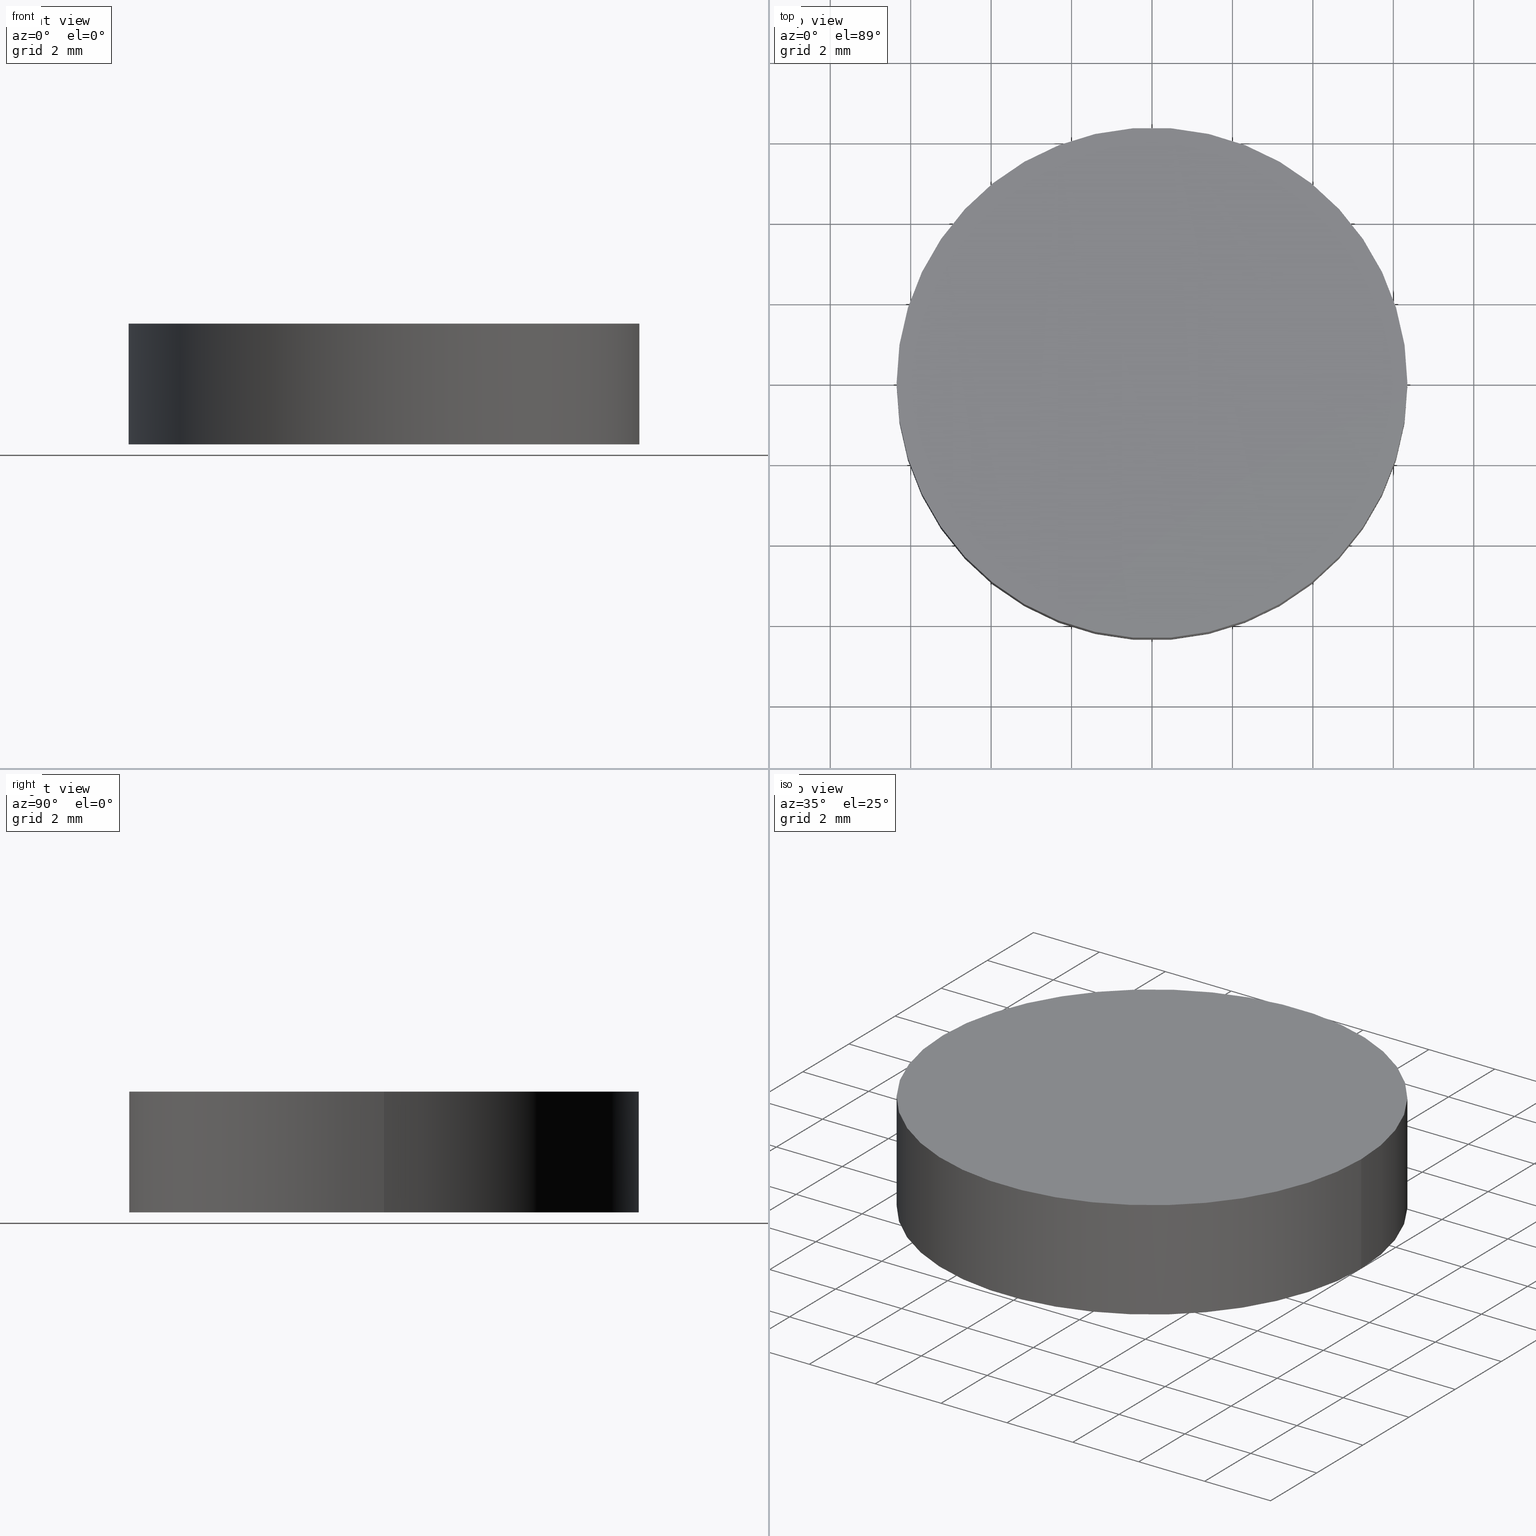
[diagram: canonical four-view strip — front | top / right | iso, engineering-drawing reading convention]
A machine part, canonical four-view strip (front | top / right | iso — engineering-drawing reading convention). The complete STEP part file that produces these views, byte-faithful:
ISO-10303-21;
HEADER;
FILE_DESCRIPTION (( 'STEP AP214' ),
    '1' );
FILE_NAME ('190133.STEP',
    '2019-07-17T08:20:52',
    ( 'user' ),
    ( '΢���й�' ),
    'SwSTEP 2.0',
    'SolidWorks 2016',
    '' );
FILE_SCHEMA (( 'AUTOMOTIVE_DESIGN' ));
ENDSEC;

DATA;
#1 = ORIENTED_EDGE ( 'NONE', *, *, #22, .T. ) ;
#2 = EDGE_CURVE ( 'NONE', #97, #31, #70, .T. ) ;
#3 = FACE_OUTER_BOUND ( 'NONE', #135, .T. ) ;
#4 = SURFACE_STYLE_FILL_AREA ( #109 ) ;
#5 = VECTOR ( 'NONE', #101, 1000.000000000000000 ) ;
#6 = FACE_OUTER_BOUND ( 'NONE', #8, .T. ) ;
#7 =( LENGTH_UNIT ( ) NAMED_UNIT ( * ) SI_UNIT ( .MILLI., .METRE. ) );
#8 = EDGE_LOOP ( 'NONE', ( #41, #100 ) ) ;
#9 = STYLED_ITEM ( 'NONE', ( #50 ), #81 ) ;
#10 = FILL_AREA_STYLE_COLOUR ( '', #56 ) ;
#11 = PRESENTATION_STYLE_ASSIGNMENT (( #104 ) ) ;
#12 =( NAMED_UNIT ( * ) SI_UNIT ( $, .STERADIAN. ) SOLID_ANGLE_UNIT ( ) );
#13 = PRESENTATION_LAYER_ASSIGNMENT (  '', '', ( #9 ) ) ;
#14 = MANIFOLD_SOLID_BREP ( '͹̨-����1', #49 ) ;
#15 = SURFACE_SIDE_STYLE ('',( #86 ) ) ;
#16 = AXIS2_PLACEMENT_3D ( 'NONE', #116, #124, #36 ) ;
#17 = MECHANICAL_DESIGN_GEOMETRIC_PRESENTATION_REPRESENTATION (  '', ( #9 ), #25 ) ;
#18 = CIRCLE ( 'NONE', #126, 6.349999999999999600 ) ;
#19 = PLANE ( 'NONE',  #28 ) ;
#20 =( LENGTH_UNIT ( ) NAMED_UNIT ( * ) SI_UNIT ( .MILLI., .METRE. ) );
#21 = DIRECTION ( 'NONE',  ( 1.000000000000000000, 0.0000000000000000000, 0.0000000000000000000 ) ) ;
#22 = EDGE_CURVE ( 'NONE', #117, #88, #98, .T. ) ;
#23 = APPLICATION_CONTEXT ( 'automotive_design' ) ;
#24 = APPLICATION_CONTEXT ( 'automotive_design' ) ;
#25 =( GEOMETRIC_REPRESENTATION_CONTEXT ( 3 ) GLOBAL_UNCERTAINTY_ASSIGNED_CONTEXT ( ( #95 ) ) GLOBAL_UNIT_ASSIGNED_CONTEXT ( ( #7, #34, #139 ) ) REPRESENTATION_CONTEXT ( 'NONE', 'WORKASPACE' ) );
#26 = CYLINDRICAL_SURFACE ( 'NONE', #16, 6.349999999999999600 ) ;
#27 = EDGE_LOOP ( 'NONE', ( #123, #58, #127, #1 ) ) ;
#28 = AXIS2_PLACEMENT_3D ( 'NONE', #83, #136, #57 ) ;
#29 = PRODUCT_DEFINITION_CONTEXT ( 'detailed design', #23, 'design' ) ;
#30 = CARTESIAN_POINT ( 'NONE',  ( 6.349999999999999600, 7.776507174585692200E-016, 3.000000000000000000 ) ) ;
#31 = VERTEX_POINT ( 'NONE', #134 ) ;
#32 = DIRECTION ( 'NONE',  ( -0.0000000000000000000, -0.0000000000000000000, -1.000000000000000000 ) ) ;
#33 = CARTESIAN_POINT ( 'NONE',  ( -6.349999999999999600, 0.0000000000000000000, 0.0000000000000000000 ) ) ;
#34 =( NAMED_UNIT ( * ) PLANE_ANGLE_UNIT ( ) SI_UNIT ( $, .RADIAN. ) );
#35 = APPLICATION_PROTOCOL_DEFINITION ( 'draft international standard', 'automotive_design', 1998, #24 ) ;
#36 = DIRECTION ( 'NONE',  ( -1.000000000000000000, 0.0000000000000000000, 0.0000000000000000000 ) ) ;
#37 = PRESENTATION_LAYER_ASSIGNMENT (  '', '', ( #111 ) ) ;
#38 = ORIENTED_EDGE ( 'NONE', *, *, #120, .T. ) ;
#39 = ADVANCED_FACE ( 'NONE', ( #112 ), #26, .T. ) ;
#40 = UNCERTAINTY_MEASURE_WITH_UNIT (LENGTH_MEASURE( 1.000000000000000100E-005 ), #20, 'distance_accuracy_value', 'NONE');
#41 = ORIENTED_EDGE ( 'NONE', *, *, #99, .T. ) ;
#42 = CARTESIAN_POINT ( 'NONE',  ( -6.349999999999999600, 0.0000000000000000000, 3.000000000000000000 ) ) ;
#43 = DIRECTION ( 'NONE',  ( 1.000000000000000000, 0.0000000000000000000, 0.0000000000000000000 ) ) ;
#44 = CARTESIAN_POINT ( 'NONE',  ( 0.0000000000000000000, 0.0000000000000000000, 3.000000000000000000 ) ) ;
#45 = AXIS2_PLACEMENT_3D ( 'NONE', #44, #72, #60 ) ;
#46 = DIRECTION ( 'NONE',  ( 0.0000000000000000000, 0.0000000000000000000, 1.000000000000000000 ) ) ;
#47 = DIRECTION ( 'NONE',  ( 0.0000000000000000000, 0.0000000000000000000, 1.000000000000000000 ) ) ;
#48 = FILL_AREA_STYLE_COLOUR ( '', #67 ) ;
#49 = CLOSED_SHELL ( 'NONE', ( #118, #39, #113, #79 ) ) ;
#50 = PRESENTATION_STYLE_ASSIGNMENT (( #75 ) ) ;
#51 = PRODUCT_CONTEXT ( 'NONE', #24, 'mechanical' ) ;
#52 =( NAMED_UNIT ( * ) SI_UNIT ( $, .STERADIAN. ) SOLID_ANGLE_UNIT ( ) );
#53 = AXIS2_PLACEMENT_3D ( 'NONE', #77, #63, #121 ) ;
#54 = DIRECTION ( 'NONE',  ( 0.0000000000000000000, 0.0000000000000000000, 1.000000000000000000 ) ) ;
#55 = MECHANICAL_DESIGN_GEOMETRIC_PRESENTATION_REPRESENTATION (  '', ( #111 ), #105 ) ;
#56 = COLOUR_RGB ( '',1.000000000000000000, 1.000000000000000000, 1.000000000000000000 ) ;
#57 = DIRECTION ( 'NONE',  ( 1.000000000000000000, 0.0000000000000000000, -0.0000000000000000000 ) ) ;
#58 = ORIENTED_EDGE ( 'NONE', *, *, #99, .F. ) ;
#59 = CARTESIAN_POINT ( 'NONE',  ( 0.0000000000000000000, 0.0000000000000000000, 0.0000000000000000000 ) ) ;
#60 = DIRECTION ( 'NONE',  ( 1.000000000000000000, 0.0000000000000000000, -0.0000000000000000000 ) ) ;
#61 = PRODUCT_DEFINITION ( 'δ֪', '', #69, #29 ) ;
#62 = CARTESIAN_POINT ( 'NONE',  ( 0.0000000000000000000, 0.0000000000000000000, 3.000000000000000000 ) ) ;
#63 = DIRECTION ( 'NONE',  ( 0.0000000000000000000, 0.0000000000000000000, 1.000000000000000000 ) ) ;
#64 =( LENGTH_UNIT ( ) NAMED_UNIT ( * ) SI_UNIT ( .MILLI., .METRE. ) );
#65 = UNCERTAINTY_MEASURE_WITH_UNIT (LENGTH_MEASURE( 1.000000000000000100E-005 ), #64, 'distance_accuracy_value', 'NONE');
#66 = EDGE_CURVE ( 'NONE', #97, #88, #80, .T. ) ;
#67 = COLOUR_RGB ( '',1.000000000000000000, 1.000000000000000000, 1.000000000000000000 ) ;
#68 = SHAPE_DEFINITION_REPRESENTATION ( #89, #81 ) ;
#69 = PRODUCT_DEFINITION_FORMATION_WITH_SPECIFIED_SOURCE ( '�κ�', '', #108, .NOT_KNOWN. ) ;
#70 = CIRCLE ( 'NONE', #73, 6.349999999999999600 ) ;
#71 = CARTESIAN_POINT ( 'NONE',  ( 6.349999999999999600, 7.776507174585692200E-016, 0.0000000000000000000 ) ) ;
#72 = DIRECTION ( 'NONE',  ( 0.0000000000000000000, 0.0000000000000000000, 1.000000000000000000 ) ) ;
#73 = AXIS2_PLACEMENT_3D ( 'NONE', #84, #47, #130 ) ;
#74 = ORIENTED_EDGE ( 'NONE', *, *, #96, .F. ) ;
#75 = SURFACE_STYLE_USAGE ( .BOTH. , #15 ) ;
#76 = PRODUCT_RELATED_PRODUCT_CATEGORY ( 'part', '', ( #108 ) ) ;
#77 = CARTESIAN_POINT ( 'NONE',  ( 0.0000000000000000000, 0.0000000000000000000, 0.0000000000000000000 ) ) ;
#78 = ORIENTED_EDGE ( 'NONE', *, *, #66, .T. ) ;
#79 = ADVANCED_FACE ( 'NONE', ( #3 ), #19, .F. ) ;
#80 = LINE ( 'NONE', #102, #87 ) ;
#81 = ADVANCED_BREP_SHAPE_REPRESENTATION ( '190133', ( #14, #53 ), #137 ) ;
#82 = ORIENTED_EDGE ( 'NONE', *, *, #2, .F. ) ;
#83 = CARTESIAN_POINT ( 'NONE',  ( 0.0000000000000000000, 0.0000000000000000000, 0.0000000000000000000 ) ) ;
#84 = CARTESIAN_POINT ( 'NONE',  ( 0.0000000000000000000, 0.0000000000000000000, 3.000000000000000000 ) ) ;
#85 = FILL_AREA_STYLE ('',( #10 ) ) ;
#86 = SURFACE_STYLE_FILL_AREA ( #85 ) ;
#87 = VECTOR ( 'NONE', #32, 1000.000000000000000 ) ;
#88 = VERTEX_POINT ( 'NONE', #71 ) ;
#89 = PRODUCT_DEFINITION_SHAPE ( 'NONE', 'NONE',  #61 ) ;
#90 = ORIENTED_EDGE ( 'NONE', *, *, #22, .F. ) ;
#91 = SURFACE_SIDE_STYLE ('',( #4 ) ) ;
#92 =( NAMED_UNIT ( * ) PLANE_ANGLE_UNIT ( ) SI_UNIT ( $, .RADIAN. ) );
#93 = FACE_OUTER_BOUND ( 'NONE', #106, .T. ) ;
#94 = CARTESIAN_POINT ( 'NONE',  ( 0.0000000000000000000, 0.0000000000000000000, 3.000000000000000000 ) ) ;
#95 = UNCERTAINTY_MEASURE_WITH_UNIT (LENGTH_MEASURE( 1.000000000000000100E-005 ), #7, 'distance_accuracy_value', 'NONE');
#96 = EDGE_CURVE ( 'NONE', #31, #117, #129, .T. ) ;
#97 = VERTEX_POINT ( 'NONE', #30 ) ;
#98 = CIRCLE ( 'NONE', #125, 6.349999999999999600 ) ;
#99 = EDGE_CURVE ( 'NONE', #31, #97, #103, .T. ) ;
#100 = ORIENTED_EDGE ( 'NONE', *, *, #2, .T. ) ;
#101 = DIRECTION ( 'NONE',  ( -0.0000000000000000000, -0.0000000000000000000, -1.000000000000000000 ) ) ;
#102 = CARTESIAN_POINT ( 'NONE',  ( 6.349999999999999600, 7.776507174585692200E-016, 3.000000000000000000 ) ) ;
#103 = CIRCLE ( 'NONE', #114, 6.349999999999999600 ) ;
#104 = SURFACE_STYLE_USAGE ( .BOTH. , #91 ) ;
#105 =( GEOMETRIC_REPRESENTATION_CONTEXT ( 3 ) GLOBAL_UNCERTAINTY_ASSIGNED_CONTEXT ( ( #40 ) ) GLOBAL_UNIT_ASSIGNED_CONTEXT ( ( #20, #92, #12 ) ) REPRESENTATION_CONTEXT ( 'NONE', 'WORKASPACE' ) );
#106 = EDGE_LOOP ( 'NONE', ( #82, #78, #38, #74 ) ) ;
#107 = APPLICATION_PROTOCOL_DEFINITION ( 'draft international standard', 'automotive_design', 1998, #23 ) ;
#108 = PRODUCT ( '190133', '190133', '', ( #51 ) ) ;
#109 = FILL_AREA_STYLE ('',( #48 ) ) ;
#110 = DIRECTION ( 'NONE',  ( -0.0000000000000000000, -0.0000000000000000000, -1.000000000000000000 ) ) ;
#111 = STYLED_ITEM ( 'NONE', ( #11 ), #14 ) ;
#112 = FACE_OUTER_BOUND ( 'NONE', #27, .T. ) ;
#113 = ADVANCED_FACE ( 'NONE', ( #6 ), #115, .T. ) ;
#114 = AXIS2_PLACEMENT_3D ( 'NONE', #94, #46, #21 ) ;
#115 = PLANE ( 'NONE',  #45 ) ;
#116 = CARTESIAN_POINT ( 'NONE',  ( 0.0000000000000000000, 0.0000000000000000000, 3.000000000000000000 ) ) ;
#117 = VERTEX_POINT ( 'NONE', #33 ) ;
#118 = ADVANCED_FACE ( 'NONE', ( #93 ), #119, .T. ) ;
#119 = CYLINDRICAL_SURFACE ( 'NONE', #133, 6.349999999999999600 ) ;
#120 = EDGE_CURVE ( 'NONE', #88, #117, #18, .T. ) ;
#121 = DIRECTION ( 'NONE',  ( 1.000000000000000000, 0.0000000000000000000, 0.0000000000000000000 ) ) ;
#122 =( NAMED_UNIT ( * ) PLANE_ANGLE_UNIT ( ) SI_UNIT ( $, .RADIAN. ) );
#123 = ORIENTED_EDGE ( 'NONE', *, *, #66, .F. ) ;
#124 = DIRECTION ( 'NONE',  ( -0.0000000000000000000, -0.0000000000000000000, -1.000000000000000000 ) ) ;
#125 = AXIS2_PLACEMENT_3D ( 'NONE', #59, #128, #43 ) ;
#126 = AXIS2_PLACEMENT_3D ( 'NONE', #140, #54, #132 ) ;
#127 = ORIENTED_EDGE ( 'NONE', *, *, #96, .T. ) ;
#128 = DIRECTION ( 'NONE',  ( 0.0000000000000000000, 0.0000000000000000000, 1.000000000000000000 ) ) ;
#129 = LINE ( 'NONE', #42, #5 ) ;
#130 = DIRECTION ( 'NONE',  ( 1.000000000000000000, 0.0000000000000000000, 0.0000000000000000000 ) ) ;
#131 = ORIENTED_EDGE ( 'NONE', *, *, #120, .F. ) ;
#132 = DIRECTION ( 'NONE',  ( 1.000000000000000000, 0.0000000000000000000, 0.0000000000000000000 ) ) ;
#133 = AXIS2_PLACEMENT_3D ( 'NONE', #62, #110, #138 ) ;
#134 = CARTESIAN_POINT ( 'NONE',  ( -6.349999999999999600, 0.0000000000000000000, 3.000000000000000000 ) ) ;
#135 = EDGE_LOOP ( 'NONE', ( #90, #131 ) ) ;
#136 = DIRECTION ( 'NONE',  ( 0.0000000000000000000, 0.0000000000000000000, 1.000000000000000000 ) ) ;
#137 =( GEOMETRIC_REPRESENTATION_CONTEXT ( 3 ) GLOBAL_UNCERTAINTY_ASSIGNED_CONTEXT ( ( #65 ) ) GLOBAL_UNIT_ASSIGNED_CONTEXT ( ( #64, #122, #52 ) ) REPRESENTATION_CONTEXT ( 'NONE', 'WORKASPACE' ) );
#138 = DIRECTION ( 'NONE',  ( -1.000000000000000000, 0.0000000000000000000, 0.0000000000000000000 ) ) ;
#139 =( NAMED_UNIT ( * ) SI_UNIT ( $, .STERADIAN. ) SOLID_ANGLE_UNIT ( ) );
#140 = CARTESIAN_POINT ( 'NONE',  ( 0.0000000000000000000, 0.0000000000000000000, 0.0000000000000000000 ) ) ;
ENDSEC;
END-ISO-10303-21;
